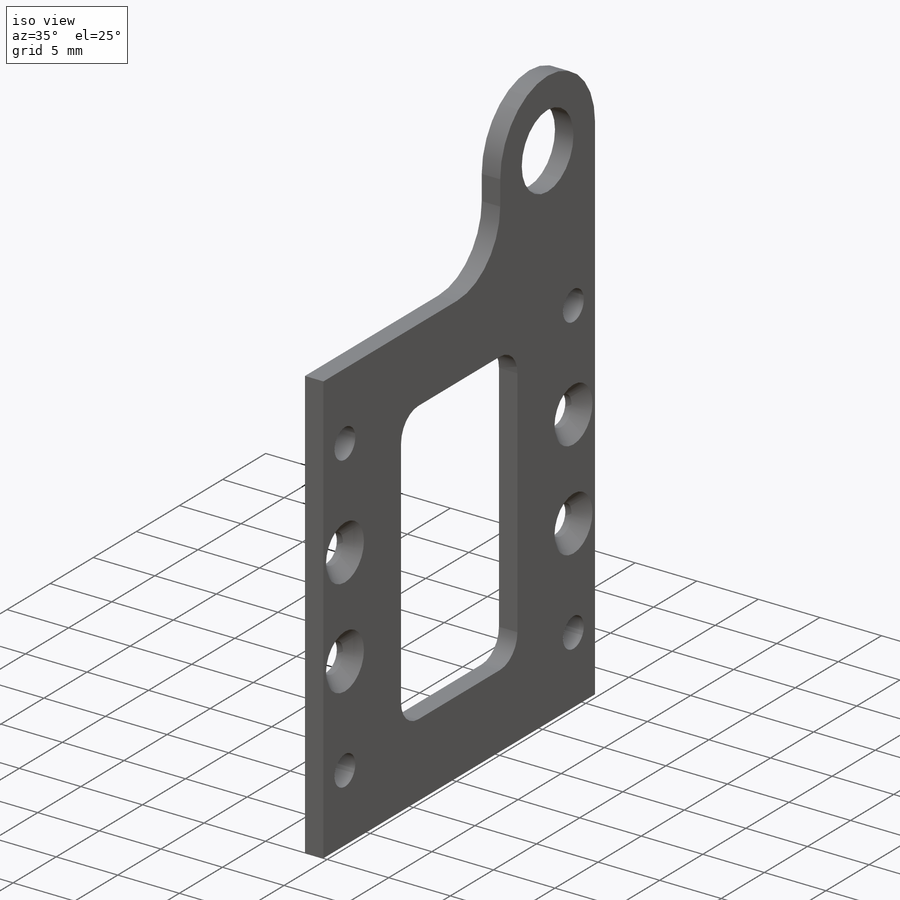
[diagram: iso view]
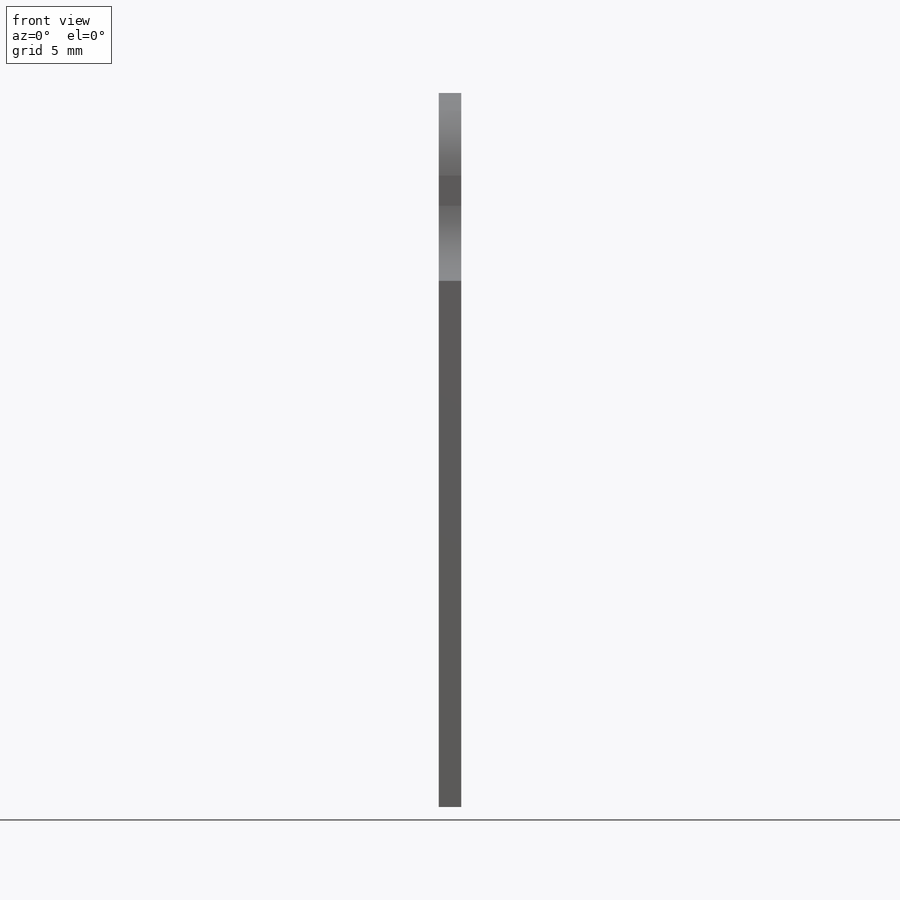
[diagram: front view]
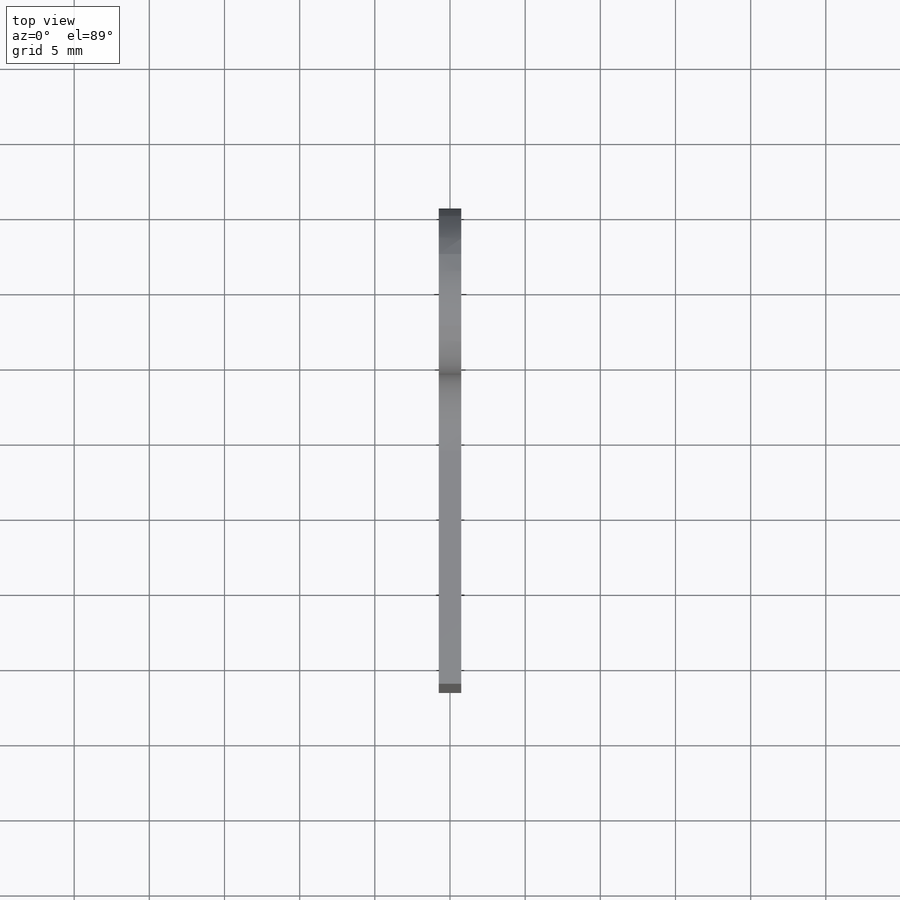
[diagram: top view]
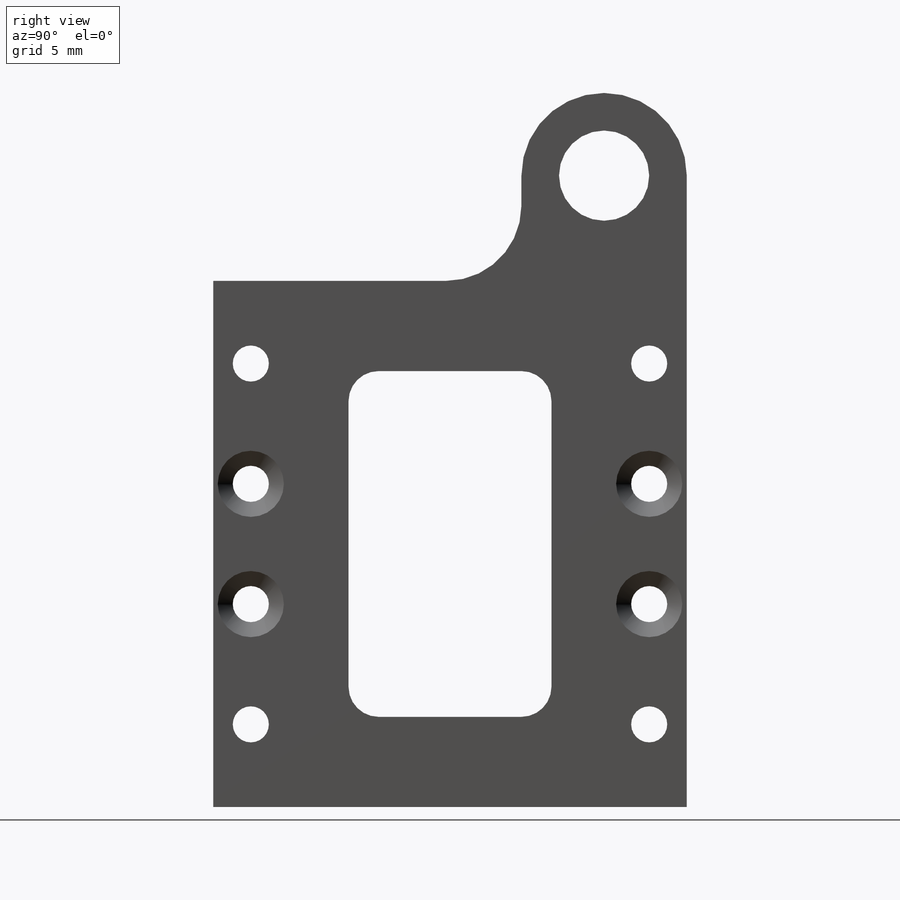
[diagram: right view]
SOLIDWORKS PART (.sldprt)
format: sldprt  version: not decoded by parser v0  size: 833,024 bytes
history: native  units: mm
features: sketch x17, hole x5, cut_extrude x5, extrude x2, material x1, pattern_linear x1, mirror x1, fillet x1 (+12 scaffold rows collapsed)
feature tree (45):
  scaffold x12  (default folders/planes/origin — collapsed)
  material  "1060 Alloy"
  sketch  "Sketch1"  dims[D1=35.0mm D2=1.5mm]
  extrude  "Boss-Extrude1"  Depth=47mm
  hole  "M2 Clearance Hole1"  Diameter=2.4mm Depth=6mm
  sketch  "Sketch6"  dims[c1.D1=20.0mm c1.D2=2.5mm c1.D3=25.0mm c2.D1=25.0mm c2.D2=20.0mm c2.D3=2.5mm c3.D1=24.0mm]
  sketch  "Sketch5"  dims[hole-wizard template sketch: 47 standard entries collapsed; hole parameters kept: c15.Hole Depth=6.0mm c15.D3=~14.816244mm c15.Drill Angle=118.0deg]
  hole  "M2 Clearance Hole2"  Diameter=2.4mm Depth=10mm
  sketch  "Sketch11"  dims[D1=26.5mm D2=10.0mm]
  sketch  "Sketch10"  dims[hole-wizard template sketch: 47 standard entries collapsed; hole parameters kept: c15.Hole Depth=10.0mm c15.D3=~14.816244mm c15.Drill Angle=118.0deg]
  hole  "Ø5.4 (5.4) Diameter Hole1"  Diameter=5.4mm Depth=16mm
  sketch  "Sketch14"  dims[D1=44.0mm]
  sketch  "Sketch13"  dims[hole-wizard template sketch: 46 standard entries collapsed; hole parameters kept: c15.Hole Dia.=5.4mm c15.Hole Depth=16.0mm c15.D3=~14.816244mm c15.Drill Angle=118.0deg]
  sketch  "Sketch15"
  cut_extrude  "Cut-Extrude2"  Depth=40mm
  sketch  "Sketch16"  dims[D1=24.0mm]
  cut_extrude  "Cut-Extrude3"  Depth=40mm
  pattern_linear  "LPattern1"  Count1=4 Count2=1 Spacing1=8mm Spacing2=10mm
  hole  "CSK for M2 Countersunk Flat Head Screw2"  Diameter=2.4mm Depth=1.5mm
  sketch  "Sketch18"  dims[c1.D2=30.0mm c1.D3=30.0mm c1.D1=~47.145438mm c2.D1=45.0deg c2.D3=15.0mm c2.D2=33.0mm c3.D1=10.5mm]
  sketch  "Sketch17"  dims[hole-wizard template sketch: 55 standard entries collapsed; hole parameters kept: c17.Thru Hole Depth=1.5mm c17.Near C'Sink Dia.=4.4mm c17.D4=~3.666174mm c17.Near C'Sink Angle=90.0deg]
  mirror  "Mirror1"
  sketch  "Sketch20"  dims[D1=6.0mm D2=2.5mm D3=7.0mm]
  extrude  "Boss-Extrude2"  [1 undecoded]
  fillet  "Fillet1"  Radius=5mm
  sketch  "Sketch21"  dims[D1=31.5mm]
  cut_extrude  "Cut-Extrude4"  Depth=10mm
  hole  "CSK for M2 Countersunk Flat Head Screw3"  Diameter=2.4mm Depth=1.5mm
  sketch  "Sketch23"
  sketch  "Sketch22"  dims[hole-wizard template sketch: 55 standard entries collapsed; hole parameters kept: c17.Thru Hole Depth=1.5mm c17.Near C'Sink Dia.=4.4mm c17.D4=~3.666174mm c17.Near C'Sink Angle=90.0deg]
  sketch  "Sketch24"  dims[D1=0.9mm D2=17.0mm D3=5.8mm]
  cut_extrude  "Cut-Extrude5"  Depth=10mm
  sketch  "Sketch25"  dims[D3=2.0mm D1=9.0mm D2=6.0mm]
  cut_extrude  "Cut-Extrude6"  Depth=10mm
decode coverage: 28 of 32 modeling features carry decoded parameters
note: ~ marks probable driven/reference dimensions
note: 1 parameter value undecoded
summary: Diameter pulled from absorbed wizard sketch
note: suppression state not decoded; provenance and decode notes live in map.json
